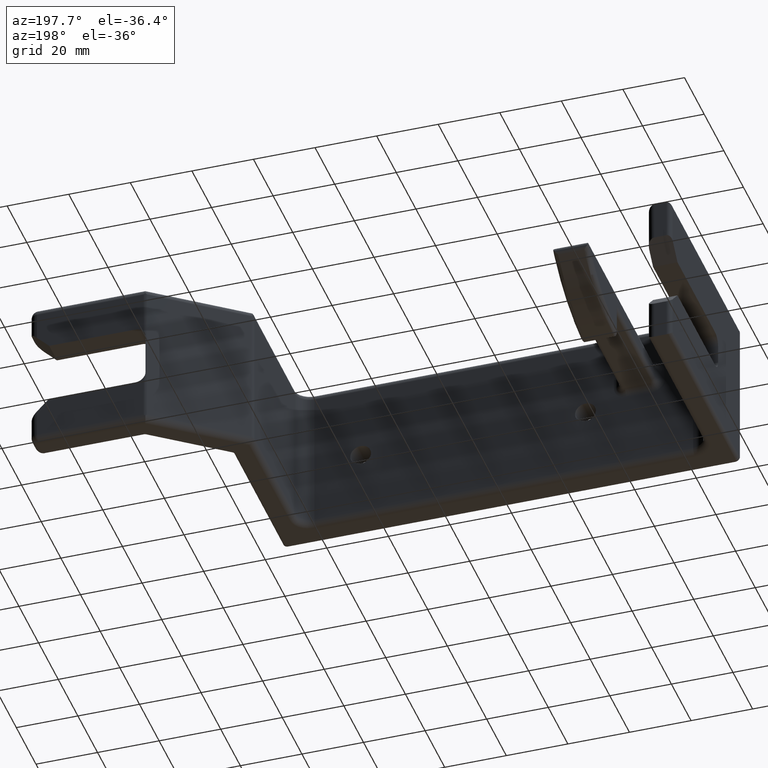
[diagram: clean part render]
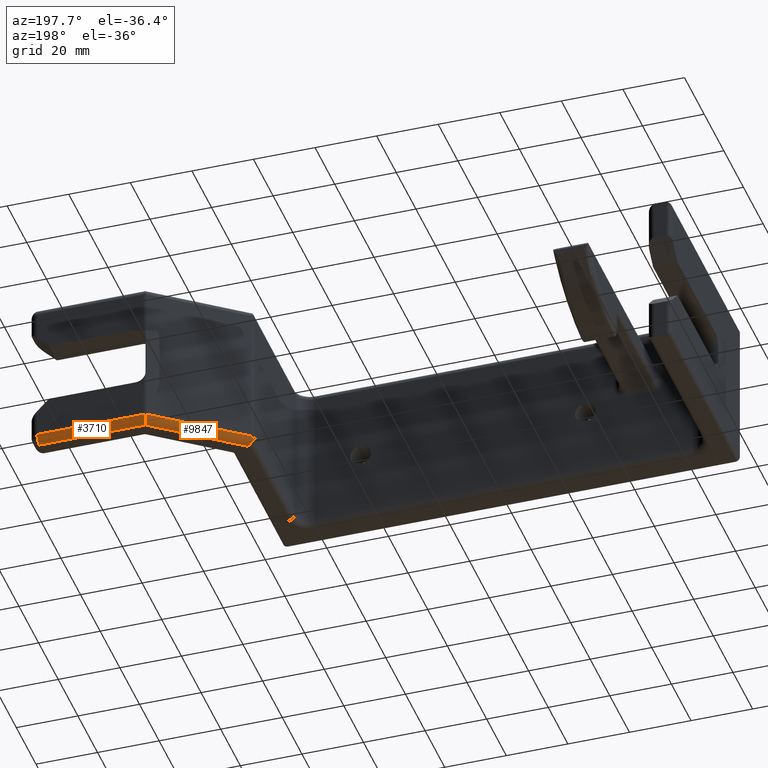
[diagram: same view with one multi-face feature highlighted, each face labeled with its STEP entity id]
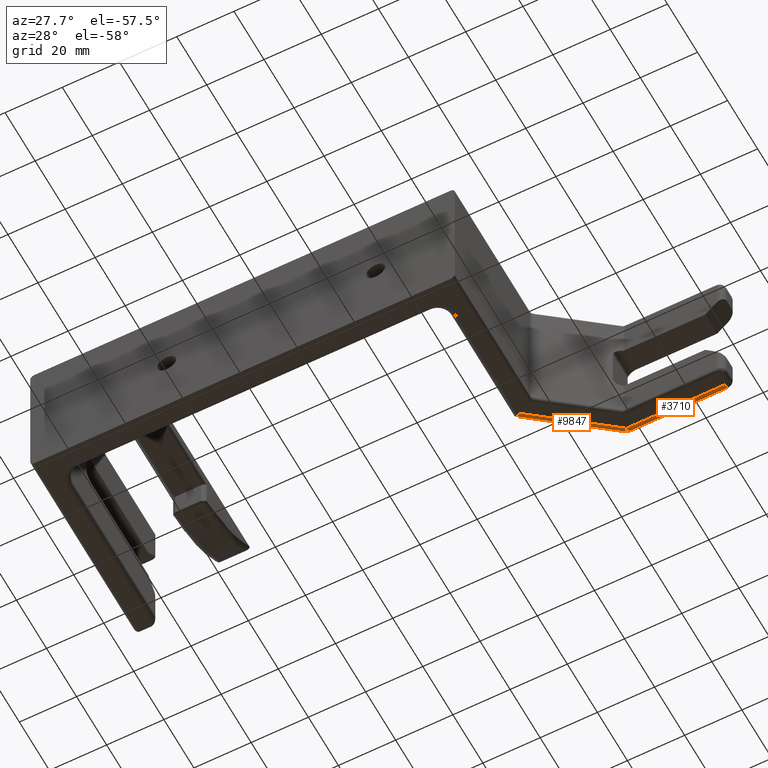
[diagram: same view with one multi-face feature highlighted, each face labeled with its STEP entity id]
A machine part, auxiliary view. The highlighted faces form ONE feature: a constant-radius fillet chain: 2 tangent blend faces with common blend radius 2.3813 mm. The faces share edges in the B-rep.
A second angle (auxiliary view) of the same feature is appended — it is thin or edge-on in the first view.
Their STEP definitions:
[1] entity #3710 (Cylinder):
#37 = EDGE_CURVE ( 'NONE', #6134, #8720, #7774, .T. ) ;
#97 = EDGE_LOOP ( 'NONE', ( #190, #4077, #9607, #8955, #6768 ) ) ;
#164 = LINE ( 'NONE', #6719, #4079 ) ;
#190 = ORIENTED_EDGE ( 'NONE', *, *, #37, .T. ) ;
#279 = CARTESIAN_POINT ( 'NONE',  ( 5.111250000000001000, 3.000000000000000400, -0.9062499999999998900 ) ) ;
#577 = EDGE_CURVE ( 'NONE', #2629, #6744, #4136, .T. ) ;
#2576 = CARTESIAN_POINT ( 'NONE',  ( 3.726311086279143300, 2.996757956225284000, -0.9306912020965031300 ) ) ;
#2629 = VERTEX_POINT ( 'NONE', #279 ) ;
#2634 = DIRECTION ( 'NONE',  ( -1.000000000000000000, 0.0000000000000000000, 0.0000000000000000000 ) ) ;
#3097 = AXIS2_PLACEMENT_3D ( 'NONE', #9291, #4666, #10072 ) ;
#3122 = VERTEX_POINT ( 'NONE', #8595 ) ;
#3254 = EDGE_CURVE ( 'NONE', #6134, #6744, #6187, .T. ) ;
#3357 = CARTESIAN_POINT ( 'NONE',  ( 3.732825329779172500, 2.998942070873377800, -0.9226032303109847900 ) ) ;
#3710 = ADVANCED_FACE ( 'NONE', ( #8141 ), #7892, .T. ) ;
#4067 = CARTESIAN_POINT ( 'NONE',  ( 3.756656859039984500, 2.906250000000000000, -1.000000000000000000 ) ) ;
#4077 = ORIENTED_EDGE ( 'NONE', *, *, #5403, .T. ) ;
#4079 = VECTOR ( 'NONE', #7512, 39.37007874015748100 ) ;
#4102 = CARTESIAN_POINT ( 'NONE',  ( 3.741887572480744300, 2.950300219182666200, -1.000000000000000000 ) ) ;
#4136 = CIRCLE ( 'NONE', #3097, 0.09375000000000005600 ) ;
#4155 = CARTESIAN_POINT ( 'NONE',  ( 3.739503423732685800, 3.000000000000008000, -0.9144262105359591800 ) ) ;
#4487 = B_SPLINE_CURVE_WITH_KNOTS ( 'NONE', 3,
 ( #8036, #3357, #4155, #9567 ),
 .UNSPECIFIED., .F., .F.,
 ( 4, 4 ),
 ( 0.0000000000000000000, 0.0008043239012224255900 ),
 .UNSPECIFIED. ) ;
#4666 = DIRECTION ( 'NONE',  ( -1.000000000000000000, 0.0000000000000000000, 0.0000000000000000000 ) ) ;
#5403 = EDGE_CURVE ( 'NONE', #8720, #3122, #4487, .T. ) ;
#5526 = EDGE_CURVE ( 'NONE', #2629, #3122, #164, .T. ) ;
#6134 = VERTEX_POINT ( 'NONE', #4067 ) ;
#6187 = LINE ( 'NONE', #7253, #10062 ) ;
#6432 = CARTESIAN_POINT ( 'NONE',  ( 3.730161530200375400, 2.985273792924603600, -0.9732180853978248400 ) ) ;
#6488 = CARTESIAN_POINT ( 'NONE',  ( 3.725224084342834400, 2.906250000000000000, -0.9062499999999998900 ) ) ;
#6547 = CARTESIAN_POINT ( 'NONE',  ( 3.726311086279143300, 2.996757956225284000, -0.9306912020965031300 ) ) ;
#6719 = CARTESIAN_POINT ( 'NONE',  ( 3.725224084342834400, 3.000000000000000400, -0.9062499999999998900 ) ) ;
#6744 = VERTEX_POINT ( 'NONE', #6896 ) ;
#6768 = ORIENTED_EDGE ( 'NONE', *, *, #3254, .F. ) ;
#6896 = CARTESIAN_POINT ( 'NONE',  ( 5.111250000000001000, 2.906250000000000000, -1.000000000000000000 ) ) ;
#7197 = CARTESIAN_POINT ( 'NONE',  ( 3.756656859039984500, 2.906250000000000000, -1.000000000000000000 ) ) ;
#7253 = CARTESIAN_POINT ( 'NONE',  ( 2.919999999999999900, 2.906250000000000000, -1.000000000000000000 ) ) ;
#7512 = DIRECTION ( 'NONE',  ( -1.000000000000000000, 0.0000000000000000000, 0.0000000000000000000 ) ) ;
#7774 =( BOUNDED_CURVE ( )  B_SPLINE_CURVE ( 3, ( #7197, #4102, #6432, #2576 ),
 .UNSPECIFIED., .F., .T. ) 
 B_SPLINE_CURVE_WITH_KNOTS ( ( 4, 4 ),
 ( 1.570796326794896600, 2.877839072267863100 ),
 .UNSPECIFIED. ) 
 CURVE ( )  GEOMETRIC_REPRESENTATION_ITEM ( )  RATIONAL_B_SPLINE_CURVE ( ( 1.000000000000000000, 0.8626318535353148000, 0.8626318535353148000, 1.000000000000000000 ) ) 
 REPRESENTATION_ITEM ( '' )  );
#7892 = CYLINDRICAL_SURFACE ( 'NONE', #9094, 0.09375000000000005600 ) ;
#8036 = CARTESIAN_POINT ( 'NONE',  ( 3.726311086279143300, 2.996757956225284000, -0.9306912020965031300 ) ) ;
#8057 = DIRECTION ( 'NONE',  ( 1.000000000000000000, -0.0000000000000000000, -0.0000000000000000000 ) ) ;
#8071 = DIRECTION ( 'NONE',  ( 0.0000000000000000000, 0.0000000000000000000, 1.000000000000000000 ) ) ;
#8141 = FACE_OUTER_BOUND ( 'NONE', #97, .T. ) ;
#8595 = CARTESIAN_POINT ( 'NONE',  ( 3.746179267474267300, 3.000000000000000400, -0.9062499999999998900 ) ) ;
#8720 = VERTEX_POINT ( 'NONE', #6547 ) ;
#8955 = ORIENTED_EDGE ( 'NONE', *, *, #577, .T. ) ;
#9094 = AXIS2_PLACEMENT_3D ( 'NONE', #6488, #2634, #8071 ) ;
#9291 = CARTESIAN_POINT ( 'NONE',  ( 5.111250000000001000, 2.906250000000000000, -0.9062499999999998900 ) ) ;
#9567 = CARTESIAN_POINT ( 'NONE',  ( 3.746179267474267300, 3.000000000000000400, -0.9062499999999998900 ) ) ;
#9607 = ORIENTED_EDGE ( 'NONE', *, *, #5526, .F. ) ;
#10062 = VECTOR ( 'NONE', #8057, 39.37007874015748100 ) ;
#10072 = DIRECTION ( 'NONE',  ( 0.0000000000000000000, 0.0000000000000000000, 1.000000000000000000 ) ) ;
[2] entity #9847 (Cylinder):
#37 = EDGE_CURVE ( 'NONE', #6134, #8720, #7774, .T. ) ;
#463 = CARTESIAN_POINT ( 'NONE',  ( 2.614049371660930100, 2.152305253529327900, -0.9406754690203544800 ) ) ;
#873 = CARTESIAN_POINT ( 'NONE',  ( 1.826196635442357600, 1.447797907996299700, -1.000000000000000000 ) ) ;
#909 = ORIENTED_EDGE ( 'NONE', *, *, #1799, .T. ) ;
#1020 = ORIENTED_EDGE ( 'NONE', *, *, #6087, .F. ) ;
#1236 = CARTESIAN_POINT ( 'NONE',  ( 2.628559673435103800, 2.171476063187841800, -0.9120294981451740900 ) ) ;
#1591 = AXIS2_PLACEMENT_3D ( 'NONE', #7383, #5828, #2750 ) ;
#1626 = CARTESIAN_POINT ( 'NONE',  ( 2.607499999999999900, 2.155565595620112500, -0.9062499999999998900 ) ) ;
#1635 = CARTESIAN_POINT ( 'NONE',  ( 3.708504137505092700, 2.987368172031926100, -0.9062499999999998900 ) ) ;
#1708 = CARTESIAN_POINT ( 'NONE',  ( 3.713830731492586700, 2.991392384522478100, -0.9144262105350589000 ) ) ;
#1799 = EDGE_CURVE ( 'NONE', #2752, #4813, #3448, .T. ) ;
#1871 =( BOUNDED_CURVE ( )  B_SPLINE_CURVE ( 3, ( #10041, #6956, #4669, #10076 ),
 .UNSPECIFIED., .F., .T. ) 
 B_SPLINE_CURVE_WITH_KNOTS ( ( 4, 4 ),
 ( 1.570796326794896600, 2.765590342683807500 ),
 .UNSPECIFIED. ) 
 CURVE ( )  GEOMETRIC_REPRESENTATION_ITEM ( )  RATIONAL_B_SPLINE_CURVE ( ( 1.000000000000000000, 0.8845350513768948100, 0.8845350513768948100, 1.000000000000000000 ) ) 
 REPRESENTATION_ITEM ( '' )  );
#2083 = ORIENTED_EDGE ( 'NONE', *, *, #9696, .T. ) ;
#2576 = CARTESIAN_POINT ( 'NONE',  ( 3.726311086279143300, 2.996757956225284000, -0.9306912020965031300 ) ) ;
#2750 = DIRECTION ( 'NONE',  ( 0.6028020795068004300, -0.7978907525108165400, 0.0000000000000000000 ) ) ;
#2752 = VERTEX_POINT ( 'NONE', #2835 ) ;
#2835 = CARTESIAN_POINT ( 'NONE',  ( 2.614049371660930100, 2.152305253529327900, -0.9406754690203544800 ) ) ;
#2900 = CARTESIAN_POINT ( 'NONE',  ( 2.632324870030825700, 2.174320648528016400, -0.9062499999999998900 ) ) ;
#3054 = FACE_OUTER_BOUND ( 'NONE', #6603, .T. ) ;
#3448 = B_SPLINE_CURVE_WITH_KNOTS ( 'NONE', 3,
 ( #463, #5135, #8221, #5895, #1236, #6674 ),
 .UNSPECIFIED., .F., .F.,
 ( 4, 2, 4 ),
 ( 0.0000000000000000000, 0.0005685504886895438200, 0.001137100977379087600 ),
 .UNSPECIFIED. ) ;
#3654 = ORIENTED_EDGE ( 'NONE', *, *, #37, .F. ) ;
#4067 = CARTESIAN_POINT ( 'NONE',  ( 3.756656859039984500, 2.906250000000000000, -1.000000000000000000 ) ) ;
#4102 = CARTESIAN_POINT ( 'NONE',  ( 3.741887572480744300, 2.950300219182666200, -1.000000000000000000 ) ) ;
#4669 = CARTESIAN_POINT ( 'NONE',  ( 2.628643900537379200, 2.145039952481456500, -0.9776437987063377700 ) ) ;
#4813 = VERTEX_POINT ( 'NONE', #2900 ) ;
#4848 = CARTESIAN_POINT ( 'NONE',  ( 3.726311086279143300, 2.996757956225284000, -0.9306912020965031300 ) ) ;
#5135 = CARTESIAN_POINT ( 'NONE',  ( 2.616280024141970400, 2.156786185817383600, -0.9350251669768948600 ) ) ;
#5828 = DIRECTION ( 'NONE',  ( -0.7978907525108178700, -0.6028020795067987600, 0.0000000000000000000 ) ) ;
#5895 = CARTESIAN_POINT ( 'NONE',  ( 2.625079483516852300, 2.168169658941071700, -0.9178712953802806700 ) ) ;
#5904 = VERTEX_POINT ( 'NONE', #9878 ) ;
#6087 = EDGE_CURVE ( 'NONE', #5904, #6134, #6608, .T. ) ;
#6134 = VERTEX_POINT ( 'NONE', #4067 ) ;
#6298 = DIRECTION ( 'NONE',  ( 0.7978907525108177600, 0.6028020795067986500, -0.0000000000000000000 ) ) ;
#6432 = CARTESIAN_POINT ( 'NONE',  ( 3.730161530200375400, 2.985273792924603600, -0.9732180853978248400 ) ) ;
#6547 = CARTESIAN_POINT ( 'NONE',  ( 3.726311086279143300, 2.996757956225284000, -0.9306912020965031300 ) ) ;
#6603 = EDGE_LOOP ( 'NONE', ( #8194, #2083, #3654, #1020, #10056, #909 ) ) ;
#6608 = LINE ( 'NONE', #873, #8681 ) ;
#6674 = CARTESIAN_POINT ( 'NONE',  ( 2.632324870030825700, 2.174320648528016400, -0.9062499999999998900 ) ) ;
#6820 = EDGE_CURVE ( 'NONE', #5904, #2752, #1871, .T. ) ;
#6956 = CARTESIAN_POINT ( 'NONE',  ( 2.661505092491024200, 2.128681325604478800, -1.000000000000000200 ) ) ;
#7017 = VECTOR ( 'NONE', #7060, 39.37007874015748900 ) ;
#7060 = DIRECTION ( 'NONE',  ( -0.7978907525108177600, -0.6028020795067986500, 0.0000000000000000000 ) ) ;
#7139 = CARTESIAN_POINT ( 'NONE',  ( 3.708504137505092700, 2.987368172031926100, -0.9062499999999998900 ) ) ;
#7197 = CARTESIAN_POINT ( 'NONE',  ( 3.756656859039984500, 2.906250000000000000, -1.000000000000000000 ) ) ;
#7383 = CARTESIAN_POINT ( 'NONE',  ( 2.664012694953762600, 2.080763337572223200, -0.9062499999999998900 ) ) ;
#7490 = B_SPLINE_CURVE_WITH_KNOTS ( 'NONE', 3,
 ( #7139, #1708, #9479, #4848 ),
 .UNSPECIFIED., .F., .F.,
 ( 4, 4 ),
 ( -9.759618025355341500E-006, 0.0007945642831970991200 ),
 .UNSPECIFIED. ) ;
#7632 = EDGE_CURVE ( 'NONE', #9043, #4813, #8850, .T. ) ;
#7774 =( BOUNDED_CURVE ( )  B_SPLINE_CURVE ( 3, ( #7197, #4102, #6432, #2576 ),
 .UNSPECIFIED., .F., .T. ) 
 B_SPLINE_CURVE_WITH_KNOTS ( ( 4, 4 ),
 ( 1.570796326794896600, 2.877839072267863100 ),
 .UNSPECIFIED. ) 
 CURVE ( )  GEOMETRIC_REPRESENTATION_ITEM ( )  RATIONAL_B_SPLINE_CURVE ( ( 1.000000000000000000, 0.8626318535353148000, 0.8626318535353148000, 1.000000000000000000 ) ) 
 REPRESENTATION_ITEM ( '' )  );
#8194 = ORIENTED_EDGE ( 'NONE', *, *, #7632, .F. ) ;
#8221 = CARTESIAN_POINT ( 'NONE',  ( 2.618960318992005700, 2.160839229643943100, -0.9293389145325256000 ) ) ;
#8681 = VECTOR ( 'NONE', #6298, 39.37007874015748900 ) ;
#8720 = VERTEX_POINT ( 'NONE', #6547 ) ;
#8850 = LINE ( 'NONE', #1626, #7017 ) ;
#8987 = CYLINDRICAL_SURFACE ( 'NONE', #1591, 0.09375000000000001400 ) ;
#9043 = VERTEX_POINT ( 'NONE', #1635 ) ;
#9479 = CARTESIAN_POINT ( 'NONE',  ( 3.719796842779113700, 2.994573841577190100, -0.9226032303109844600 ) ) ;
#9696 = EDGE_CURVE ( 'NONE', #9043, #8720, #7490, .T. ) ;
#9847 = ADVANCED_FACE ( 'NONE', ( #3054 ), #8987, .T. ) ;
#9878 = CARTESIAN_POINT ( 'NONE',  ( 2.701249999999999900, 2.108895916934078400, -1.000000000000000000 ) ) ;
#10041 = CARTESIAN_POINT ( 'NONE',  ( 2.701249999999999900, 2.108895916934078400, -1.000000000000000000 ) ) ;
#10056 = ORIENTED_EDGE ( 'NONE', *, *, #6820, .T. ) ;
#10076 = CARTESIAN_POINT ( 'NONE',  ( 2.614049371660930100, 2.152305253529327900, -0.9406754690203544800 ) ) ;